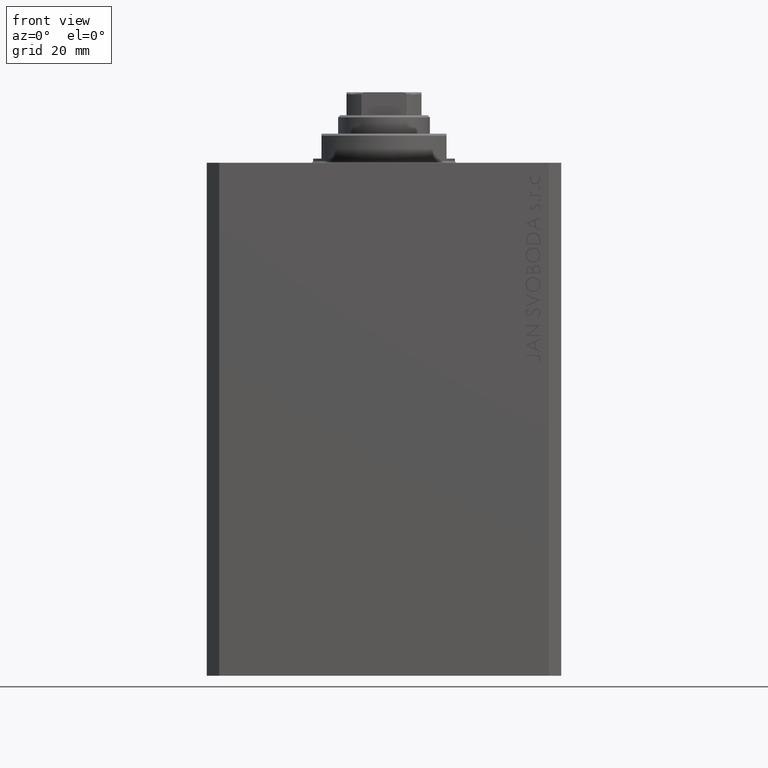
[diagram: clean part render]
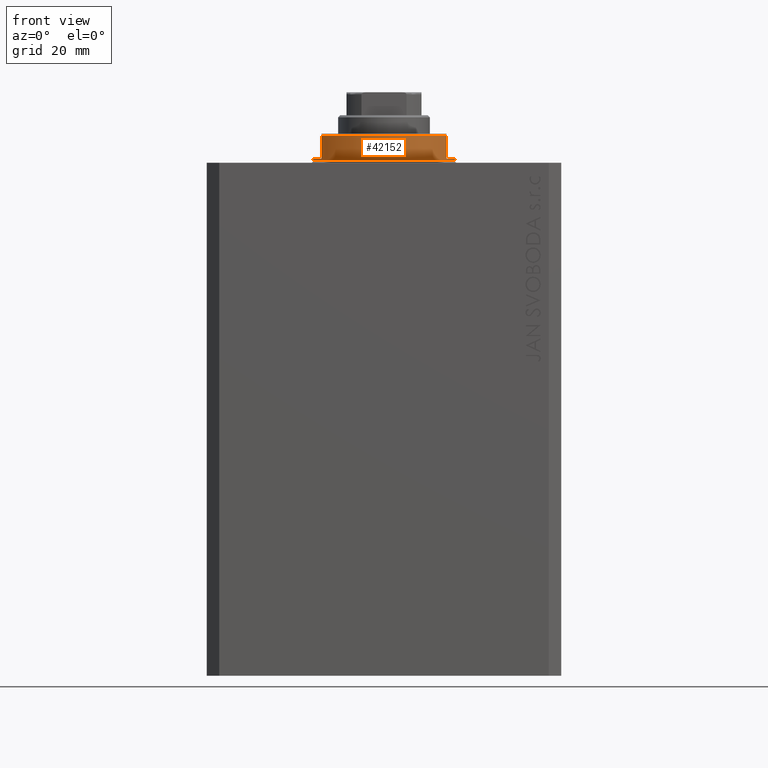
[diagram: same view with one face highlighted and labeled with its STEP entity id]
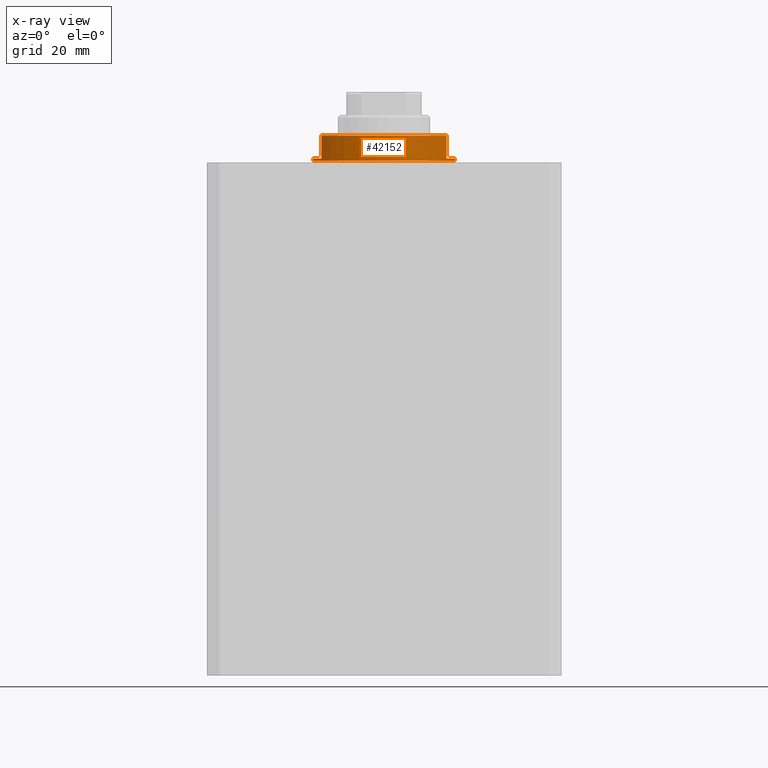
[diagram: x-ray of the same camera — body ghosted, the highlighted face saturated]
A machine part, front view. The second image highlights one B-rep face of the part: STEP entity #42152.
The next image is the same camera in x-ray: the body ghosted, the highlighted face saturated — about 0% of this face is hidden behind the body in this view.
In plain terms, the highlighted cylindrical surface (partial cylindrical patch) has radius 17 mm, axis along (0, 0, -1).
Its self-contained STEP definition (entity closure, byte-faithful):
#88 = DIRECTION ( 'NONE',  ( 0.000000000000000000, 0.000000000000000000, -1.000000000000000000 ) ) ;
#834 = DIRECTION ( 'NONE',  ( 1.000000000000000000, 0.000000000000000000, 0.000000000000000000 ) ) ;
#1038 = DIRECTION ( 'NONE',  ( -0.000000000000000000, -0.000000000000000000, 1.000000000000000000 ) ) ;
#2103 = LINE ( 'NONE', #26326, #10986 ) ;
#4377 = LINE ( 'NONE', #38694, #33957 ) ;
#4462 = VERTEX_POINT ( 'NONE', #41071 ) ;
#5326 = AXIS2_PLACEMENT_3D ( 'NONE', #42342, #25082, #21935 ) ;
#5389 = ORIENTED_EDGE ( 'NONE', *, *, #39105, .T. ) ;
#6068 = CARTESIAN_POINT ( 'NONE',  ( 15.00000000000000000, -8.000000000000001776, -7.000000000000000000 ) ) ;
#6566 = CARTESIAN_POINT ( 'NONE',  ( 14.99999999999999645, -8.000000000000003553, -1.000000000000000000 ) ) ;
#6789 = EDGE_CURVE ( 'NONE', #32507, #10188, #44195, .T. ) ;
#7324 = CIRCLE ( 'NONE', #10920, 17.00000000000000000 ) ;
#8286 = DIRECTION ( 'NONE',  ( -0.000000000000000000, -0.000000000000000000, 1.000000000000000000 ) ) ;
#8662 = DIRECTION ( 'NONE',  ( 0.000000000000000000, 0.000000000000000000, -1.000000000000000000 ) ) ;
#8891 = DIRECTION ( 'NONE',  ( -1.000000000000000000, 0.000000000000000000, 0.000000000000000000 ) ) ;
#9707 = DIRECTION ( 'NONE',  ( 0.000000000000000000, 0.000000000000000000, -1.000000000000000000 ) ) ;
#10026 = VERTEX_POINT ( 'NONE', #16987 ) ;
#10188 = VERTEX_POINT ( 'NONE', #33891 ) ;
#10738 = ORIENTED_EDGE ( 'NONE', *, *, #6789, .F. ) ;
#10920 = AXIS2_PLACEMENT_3D ( 'NONE', #19010, #8662, #8891 ) ;
#10986 = VECTOR ( 'NONE', #25880, 1000.000000000000000 ) ;
#13299 = AXIS2_PLACEMENT_3D ( 'NONE', #16920, #88, #17146 ) ;
#13308 = LINE ( 'NONE', #15606, #29665 ) ;
#13880 = VERTEX_POINT ( 'NONE', #16341 ) ;
#14334 = VERTEX_POINT ( 'NONE', #42879 ) ;
#14513 = CARTESIAN_POINT ( 'NONE',  ( 0.000000000000000000, 0.000000000000000000, -0.4999999999999995559 ) ) ;
#15327 = CIRCLE ( 'NONE', #5326, 17.00000000000000000 ) ;
#15606 = CARTESIAN_POINT ( 'NONE',  ( -15.00000000000000000, -8.000000000000001776, -7.000000000000000000 ) ) ;
#16159 = CIRCLE ( 'NONE', #13299, 17.00000000000000000 ) ;
#16190 = CIRCLE ( 'NONE', #21908, 17.00000000000000000 ) ;
#16341 = CARTESIAN_POINT ( 'NONE',  ( -17.00000000000000000, 2.081899558550500280E-15, -1.000000000000000000 ) ) ;
#16920 = CARTESIAN_POINT ( 'NONE',  ( 0.000000000000000000, 0.000000000000000000, -1.000000000000000000 ) ) ;
#16987 = CARTESIAN_POINT ( 'NONE',  ( 17.00000000000000000, 0.000000000000000000, -1.000000000000000000 ) ) ;
#17146 = DIRECTION ( 'NONE',  ( -1.000000000000000000, 0.000000000000000000, 0.000000000000000000 ) ) ;
#18202 = ORIENTED_EDGE ( 'NONE', *, *, #38615, .T. ) ;
#18245 = CARTESIAN_POINT ( 'NONE',  ( -14.99999999999999645, -8.000000000000003553, -1.000000000000000000 ) ) ;
#18551 = VERTEX_POINT ( 'NONE', #35485 ) ;
#19010 = CARTESIAN_POINT ( 'NONE',  ( 0.000000000000000000, 0.000000000000000000, -1.000000000000000000 ) ) ;
#19770 = DIRECTION ( 'NONE',  ( 0.000000000000000000, 0.000000000000000000, -1.000000000000000000 ) ) ;
#20688 = EDGE_LOOP ( 'NONE', ( #26463, #36676, #18202, #5389, #10738, #21205, #43941, #26247 ) ) ;
#21205 = ORIENTED_EDGE ( 'NONE', *, *, #41813, .F. ) ;
#21289 = EDGE_CURVE ( 'NONE', #10026, #18551, #2103, .T. ) ;
#21908 = AXIS2_PLACEMENT_3D ( 'NONE', #14513, #24395, #834 ) ;
#21935 = DIRECTION ( 'NONE',  ( -1.000000000000000000, 0.000000000000000000, 0.000000000000000000 ) ) ;
#24395 = DIRECTION ( 'NONE',  ( -0.000000000000000000, -0.000000000000000000, -1.000000000000000000 ) ) ;
#25082 = DIRECTION ( 'NONE',  ( 0.000000000000000000, 0.000000000000000000, 1.000000000000000000 ) ) ;
#25445 = VERTEX_POINT ( 'NONE', #18245 ) ;
#25880 = DIRECTION ( 'NONE',  ( -0.000000000000000000, -0.000000000000000000, 1.000000000000000000 ) ) ;
#26247 = ORIENTED_EDGE ( 'NONE', *, *, #43930, .T. ) ;
#26326 = CARTESIAN_POINT ( 'NONE',  ( 17.00000000000000000, 0.000000000000000000, -7.000000000000000000 ) ) ;
#26463 = ORIENTED_EDGE ( 'NONE', *, *, #38496, .F. ) ;
#27091 = VECTOR ( 'NONE', #19770, 1000.000000000000000 ) ;
#27632 = AXIS2_PLACEMENT_3D ( 'NONE', #28260, #8286, #32267 ) ;
#28038 = CYLINDRICAL_SURFACE ( 'NONE', #27632, 17.00000000000000000 ) ;
#28260 = CARTESIAN_POINT ( 'NONE',  ( 0.000000000000000000, 0.000000000000000000, -7.000000000000000000 ) ) ;
#29665 = VECTOR ( 'NONE', #9707, 1000.000000000000000 ) ;
#32267 = DIRECTION ( 'NONE',  ( 1.000000000000000000, 0.000000000000000000, 0.000000000000000000 ) ) ;
#32507 = VERTEX_POINT ( 'NONE', #6566 ) ;
#33131 = EDGE_CURVE ( 'NONE', #25445, #13880, #7324, .T. ) ;
#33891 = CARTESIAN_POINT ( 'NONE',  ( 15.00000000000000000, -8.000000000000001776, -6.500000000000000000 ) ) ;
#33957 = VECTOR ( 'NONE', #1038, 1000.000000000000000 ) ;
#35485 = CARTESIAN_POINT ( 'NONE',  ( 17.00000000000000000, 0.000000000000000000, -0.4999999999999995559 ) ) ;
#36676 = ORIENTED_EDGE ( 'NONE', *, *, #33131, .F. ) ;
#38496 = EDGE_CURVE ( 'NONE', #13880, #4462, #4377, .T. ) ;
#38615 = EDGE_CURVE ( 'NONE', #25445, #14334, #13308, .T. ) ;
#38694 = CARTESIAN_POINT ( 'NONE',  ( -17.00000000000000000, 2.081899558550500280E-15, -7.000000000000000000 ) ) ;
#39005 = FACE_OUTER_BOUND ( 'NONE', #20688, .T. ) ;
#39105 = EDGE_CURVE ( 'NONE', #14334, #10188, #15327, .T. ) ;
#41071 = CARTESIAN_POINT ( 'NONE',  ( -17.00000000000000000, 2.081899558550500280E-15, -0.4999999999999995559 ) ) ;
#41813 = EDGE_CURVE ( 'NONE', #10026, #32507, #16159, .T. ) ;
#42152 = ADVANCED_FACE ( 'NONE', ( #39005 ), #28038, .T. ) ;
#42342 = CARTESIAN_POINT ( 'NONE',  ( 0.000000000000000000, 0.000000000000000000, -6.500000000000000000 ) ) ;
#42879 = CARTESIAN_POINT ( 'NONE',  ( -15.00000000000000000, -8.000000000000001776, -6.500000000000000888 ) ) ;
#43930 = EDGE_CURVE ( 'NONE', #18551, #4462, #16190, .T. ) ;
#43941 = ORIENTED_EDGE ( 'NONE', *, *, #21289, .T. ) ;
#44195 = LINE ( 'NONE', #6068, #27091 ) ;